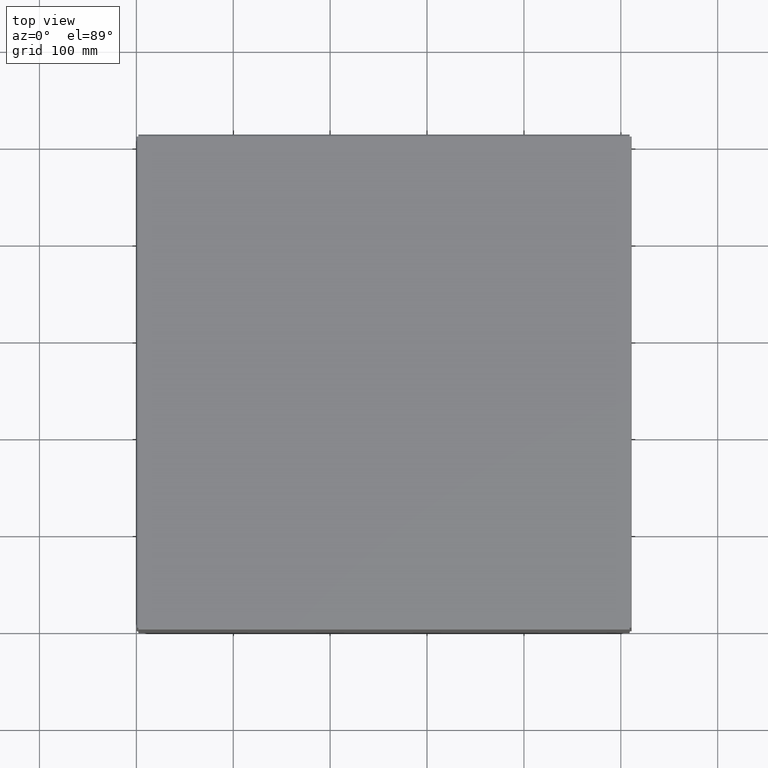
[diagram: clean part render]
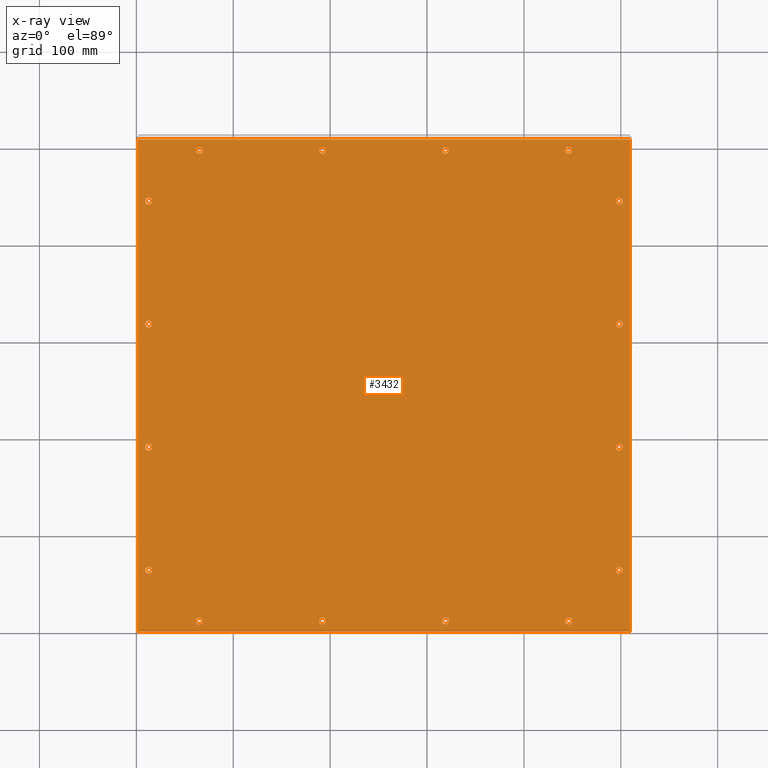
[diagram: x-ray — body ghosted, one internal face saturated and labeled with its STEP entity id]
A machine part, top view, then the same camera in x-ray: the body is ghosted and one INTERNAL B-rep face — a face not visible from any outside direction — is saturated and labeled: STEP entity #3432.
In plain terms, the highlighted planar face has unit normal (-0, 0, 1).
Its self-contained STEP definition (entity closure, byte-faithful):
#400=PLANE($,#3696);
#603=LINE($,#5849,#815);
#607=LINE($,#5857,#819);
#610=LINE($,#5863,#822);
#613=LINE($,#5868,#825);
#815=VECTOR($,#4353,20.);
#819=VECTOR($,#4359,20.);
#822=VECTOR($,#4364,20.);
#825=VECTOR($,#4369,20.);
#1008=FACE_BOUND($,#1414,.T.);
#1009=FACE_BOUND($,#1415,.T.);
#1010=FACE_BOUND($,#1416,.T.);
#1011=FACE_BOUND($,#1417,.T.);
#1012=FACE_BOUND($,#1418,.T.);
#1013=FACE_BOUND($,#1419,.T.);
#1014=FACE_BOUND($,#1420,.T.);
#1015=FACE_BOUND($,#1421,.T.);
#1016=FACE_BOUND($,#1422,.T.);
#1017=FACE_BOUND($,#1423,.T.);
#1018=FACE_BOUND($,#1424,.T.);
#1019=FACE_BOUND($,#1425,.T.);
#1020=FACE_BOUND($,#1426,.T.);
#1021=FACE_BOUND($,#1427,.T.);
#1022=FACE_BOUND($,#1428,.T.);
#1023=FACE_BOUND($,#1429,.T.);
#1024=FACE_BOUND($,#1430,.T.);
#1414=EDGE_LOOP($,(#2751));
#1415=EDGE_LOOP($,(#2752));
#1416=EDGE_LOOP($,(#2753));
#1417=EDGE_LOOP($,(#2754));
#1418=EDGE_LOOP($,(#2755));
#1419=EDGE_LOOP($,(#2756));
#1420=EDGE_LOOP($,(#2757));
#1421=EDGE_LOOP($,(#2758));
#1422=EDGE_LOOP($,(#2759));
#1423=EDGE_LOOP($,(#2760));
#1424=EDGE_LOOP($,(#2761));
#1425=EDGE_LOOP($,(#2762));
#1426=EDGE_LOOP($,(#2763));
#1427=EDGE_LOOP($,(#2764));
#1428=EDGE_LOOP($,(#2765));
#1429=EDGE_LOOP($,(#2766));
#1430=EDGE_LOOP($,(#2767,#2768,#2769,#2770));
#1568=CIRCLE($,#3645,0.140500000000003);
#1570=CIRCLE($,#3648,0.1405);
#1572=CIRCLE($,#3651,0.140500000000003);
#1574=CIRCLE($,#3654,0.1405);
#1576=CIRCLE($,#3657,0.140500000000003);
#1578=CIRCLE($,#3660,0.1405);
#1580=CIRCLE($,#3663,0.1405);
#1582=CIRCLE($,#3666,0.1405);
#1584=CIRCLE($,#3669,0.1405);
#1586=CIRCLE($,#3672,0.1405);
#1588=CIRCLE($,#3675,0.1405);
#1590=CIRCLE($,#3678,0.1405);
#1592=CIRCLE($,#3681,0.140500000000003);
#1594=CIRCLE($,#3684,0.1405);
#1596=CIRCLE($,#3687,0.1405);
#1598=CIRCLE($,#3690,0.1405);
#1770=VERTEX_POINT($,#5769);
#1772=VERTEX_POINT($,#5774);
#1774=VERTEX_POINT($,#5779);
#1776=VERTEX_POINT($,#5784);
#1778=VERTEX_POINT($,#5789);
#1780=VERTEX_POINT($,#5794);
#1782=VERTEX_POINT($,#5799);
#1784=VERTEX_POINT($,#5804);
#1786=VERTEX_POINT($,#5809);
#1788=VERTEX_POINT($,#5814);
#1790=VERTEX_POINT($,#5819);
#1792=VERTEX_POINT($,#5824);
#1794=VERTEX_POINT($,#5829);
#1796=VERTEX_POINT($,#5834);
#1798=VERTEX_POINT($,#5839);
#1800=VERTEX_POINT($,#5844);
#1801=VERTEX_POINT($,#5847);
#1802=VERTEX_POINT($,#5848);
#1805=VERTEX_POINT($,#5856);
#1807=VERTEX_POINT($,#5862);
#2110=EDGE_CURVE($,#1770,#1770,#1568,.T.);
#2112=EDGE_CURVE($,#1772,#1772,#1570,.T.);
#2114=EDGE_CURVE($,#1774,#1774,#1572,.T.);
#2116=EDGE_CURVE($,#1776,#1776,#1574,.T.);
#2118=EDGE_CURVE($,#1778,#1778,#1576,.T.);
#2120=EDGE_CURVE($,#1780,#1780,#1578,.T.);
#2122=EDGE_CURVE($,#1782,#1782,#1580,.T.);
#2124=EDGE_CURVE($,#1784,#1784,#1582,.T.);
#2126=EDGE_CURVE($,#1786,#1786,#1584,.T.);
#2128=EDGE_CURVE($,#1788,#1788,#1586,.T.);
#2130=EDGE_CURVE($,#1790,#1790,#1588,.T.);
#2132=EDGE_CURVE($,#1792,#1792,#1590,.T.);
#2134=EDGE_CURVE($,#1794,#1794,#1592,.T.);
#2136=EDGE_CURVE($,#1796,#1796,#1594,.T.);
#2138=EDGE_CURVE($,#1798,#1798,#1596,.T.);
#2140=EDGE_CURVE($,#1800,#1800,#1598,.T.);
#2141=EDGE_CURVE($,#1801,#1802,#603,.T.);
#2145=EDGE_CURVE($,#1802,#1805,#607,.T.);
#2148=EDGE_CURVE($,#1805,#1807,#610,.T.);
#2151=EDGE_CURVE($,#1807,#1801,#613,.T.);
#2751=ORIENTED_EDGE($,*,*,#2110,.T.);
#2752=ORIENTED_EDGE($,*,*,#2112,.T.);
#2753=ORIENTED_EDGE($,*,*,#2114,.T.);
#2754=ORIENTED_EDGE($,*,*,#2116,.T.);
#2755=ORIENTED_EDGE($,*,*,#2118,.T.);
#2756=ORIENTED_EDGE($,*,*,#2120,.T.);
#2757=ORIENTED_EDGE($,*,*,#2122,.T.);
#2758=ORIENTED_EDGE($,*,*,#2124,.T.);
#2759=ORIENTED_EDGE($,*,*,#2126,.T.);
#2760=ORIENTED_EDGE($,*,*,#2128,.T.);
#2761=ORIENTED_EDGE($,*,*,#2130,.T.);
#2762=ORIENTED_EDGE($,*,*,#2132,.T.);
#2763=ORIENTED_EDGE($,*,*,#2134,.T.);
#2764=ORIENTED_EDGE($,*,*,#2136,.T.);
#2765=ORIENTED_EDGE($,*,*,#2138,.T.);
#2766=ORIENTED_EDGE($,*,*,#2140,.T.);
#2767=ORIENTED_EDGE($,*,*,#2141,.F.);
#2768=ORIENTED_EDGE($,*,*,#2151,.F.);
#2769=ORIENTED_EDGE($,*,*,#2148,.F.);
#2770=ORIENTED_EDGE($,*,*,#2145,.F.);
#3432=ADVANCED_FACE($,(#1008,#1009,#1010,#1011,#1012,#1013,#1014,#1015,
#1016,#1017,#1018,#1019,#1020,#1021,#1022,#1023,#1024),#400,.T.);
#3645=AXIS2_PLACEMENT_3D($,#5770,#4259,#4260);
#3648=AXIS2_PLACEMENT_3D($,#5775,#4265,#4266);
#3651=AXIS2_PLACEMENT_3D($,#5780,#4271,#4272);
#3654=AXIS2_PLACEMENT_3D($,#5785,#4277,#4278);
#3657=AXIS2_PLACEMENT_3D($,#5790,#4283,#4284);
#3660=AXIS2_PLACEMENT_3D($,#5795,#4289,#4290);
#3663=AXIS2_PLACEMENT_3D($,#5800,#4295,#4296);
#3666=AXIS2_PLACEMENT_3D($,#5805,#4301,#4302);
#3669=AXIS2_PLACEMENT_3D($,#5810,#4307,#4308);
#3672=AXIS2_PLACEMENT_3D($,#5815,#4313,#4314);
#3675=AXIS2_PLACEMENT_3D($,#5820,#4319,#4320);
#3678=AXIS2_PLACEMENT_3D($,#5825,#4325,#4326);
#3681=AXIS2_PLACEMENT_3D($,#5830,#4331,#4332);
#3684=AXIS2_PLACEMENT_3D($,#5835,#4337,#4338);
#3687=AXIS2_PLACEMENT_3D($,#5840,#4343,#4344);
#3690=AXIS2_PLACEMENT_3D($,#5845,#4349,#4350);
#3696=AXIS2_PLACEMENT_3D($,#5871,#4373,#4374);
#4259=DIRECTION('center_axis',(0.,0.,-1.));
#4260=DIRECTION('ref_axis',(-1.,0.,0.));
#4265=DIRECTION('center_axis',(0.,0.,-1.));
#4266=DIRECTION('ref_axis',(-1.,0.,0.));
#4271=DIRECTION('center_axis',(0.,0.,-1.));
#4272=DIRECTION('ref_axis',(-1.,0.,0.));
#4277=DIRECTION('center_axis',(0.,0.,-1.));
#4278=DIRECTION('ref_axis',(-1.,0.,0.));
#4283=DIRECTION('center_axis',(0.,0.,-1.));
#4284=DIRECTION('ref_axis',(-1.,0.,0.));
#4289=DIRECTION('center_axis',(0.,0.,-1.));
#4290=DIRECTION('ref_axis',(-1.,0.,0.));
#4295=DIRECTION('center_axis',(0.,0.,-1.));
#4296=DIRECTION('ref_axis',(-1.,0.,0.));
#4301=DIRECTION('center_axis',(0.,0.,-1.));
#4302=DIRECTION('ref_axis',(-1.,0.,0.));
#4307=DIRECTION('center_axis',(0.,0.,-1.));
#4308=DIRECTION('ref_axis',(-1.,0.,0.));
#4313=DIRECTION('center_axis',(0.,0.,-1.));
#4314=DIRECTION('ref_axis',(-1.,0.,0.));
#4319=DIRECTION('center_axis',(0.,0.,-1.));
#4320=DIRECTION('ref_axis',(-1.,0.,0.));
#4325=DIRECTION('center_axis',(0.,0.,-1.));
#4326=DIRECTION('ref_axis',(-1.,0.,0.));
#4331=DIRECTION('center_axis',(0.,0.,-1.));
#4332=DIRECTION('ref_axis',(-1.,0.,0.));
#4337=DIRECTION('center_axis',(0.,0.,-1.));
#4338=DIRECTION('ref_axis',(-1.,0.,0.));
#4343=DIRECTION('center_axis',(0.,0.,-1.));
#4344=DIRECTION('ref_axis',(-1.,0.,0.));
#4349=DIRECTION('center_axis',(0.,0.,-1.));
#4350=DIRECTION('ref_axis',(-1.,0.,0.));
#4353=DIRECTION($,(-3.06161699786838E-016,1.,0.));
#4359=DIRECTION($,(1.,0.,0.));
#4364=DIRECTION($,(1.3987061727561E-016,-1.,0.));
#4369=DIRECTION($,(-1.,0.,0.));
#4373=DIRECTION('center_axis',(0.,0.,1.));
#4374=DIRECTION('ref_axis',(1.,0.,0.));
#5769=CARTESIAN_POINT('',(17.6405,19.562,0.09375));
#5770=CARTESIAN_POINT('Origin',(17.5,19.562,0.09375));
#5774=CARTESIAN_POINT('',(17.6405,0.438,0.09375));
#5775=CARTESIAN_POINT('Origin',(17.5,0.438,0.09375));
#5779=CARTESIAN_POINT('',(12.6405,19.562,0.09375));
#5780=CARTESIAN_POINT('Origin',(12.5,19.562,0.09375));
#5784=CARTESIAN_POINT('',(12.6405,0.438,0.09375));
#5785=CARTESIAN_POINT('Origin',(12.5,0.438,0.09375));
#5789=CARTESIAN_POINT('',(7.6405,19.562,0.09375));
#5790=CARTESIAN_POINT('Origin',(7.5,19.562,0.09375));
#5794=CARTESIAN_POINT('',(7.6405,0.438,0.09375));
#5795=CARTESIAN_POINT('Origin',(7.5,0.438,0.09375));
#5799=CARTESIAN_POINT('',(19.7025,17.5,0.09375));
#5800=CARTESIAN_POINT('Origin',(19.562,17.5,0.09375));
#5804=CARTESIAN_POINT('',(0.578499999999997,17.5,0.09375));
#5805=CARTESIAN_POINT('Origin',(0.437999999999997,17.5,0.09375));
#5809=CARTESIAN_POINT('',(19.7025,12.5,0.09375));
#5810=CARTESIAN_POINT('Origin',(19.562,12.5,0.09375));
#5814=CARTESIAN_POINT('',(0.578499999999998,12.5,0.09375));
#5815=CARTESIAN_POINT('Origin',(0.437999999999998,12.5,0.09375));
#5819=CARTESIAN_POINT('',(19.7025,7.5,0.09375));
#5820=CARTESIAN_POINT('Origin',(19.562,7.5,0.09375));
#5824=CARTESIAN_POINT('',(0.5785,7.5,0.09375));
#5825=CARTESIAN_POINT('Origin',(0.438,7.5,0.09375));
#5829=CARTESIAN_POINT('',(2.6405,19.562,0.09375));
#5830=CARTESIAN_POINT('Origin',(2.5,19.562,0.09375));
#5834=CARTESIAN_POINT('',(2.6405,0.438,0.09375));
#5835=CARTESIAN_POINT('Origin',(2.5,0.438,0.09375));
#5839=CARTESIAN_POINT('',(19.7025,2.5,0.09375));
#5840=CARTESIAN_POINT('Origin',(19.562,2.5,0.09375));
#5844=CARTESIAN_POINT('',(0.578500000000001,2.5,0.09375));
#5845=CARTESIAN_POINT('Origin',(0.438000000000001,2.5,0.09375));
#5847=CARTESIAN_POINT('',(0.,0.,0.09375));
#5848=CARTESIAN_POINT('',(-6.12323399573676E-015,20.,0.09375));
#5849=CARTESIAN_POINT($,(-6.12323399573676E-015,20.,0.09375));
#5856=CARTESIAN_POINT('',(20.,20.,0.09375));
#5857=CARTESIAN_POINT($,(20.,20.,0.09375));
#5862=CARTESIAN_POINT('',(20.,0.,0.09375));
#5863=CARTESIAN_POINT($,(20.,0.,0.09375));
#5868=CARTESIAN_POINT($,(0.,0.,0.09375));
#5871=CARTESIAN_POINT('Origin',(10.,10.,0.09375));